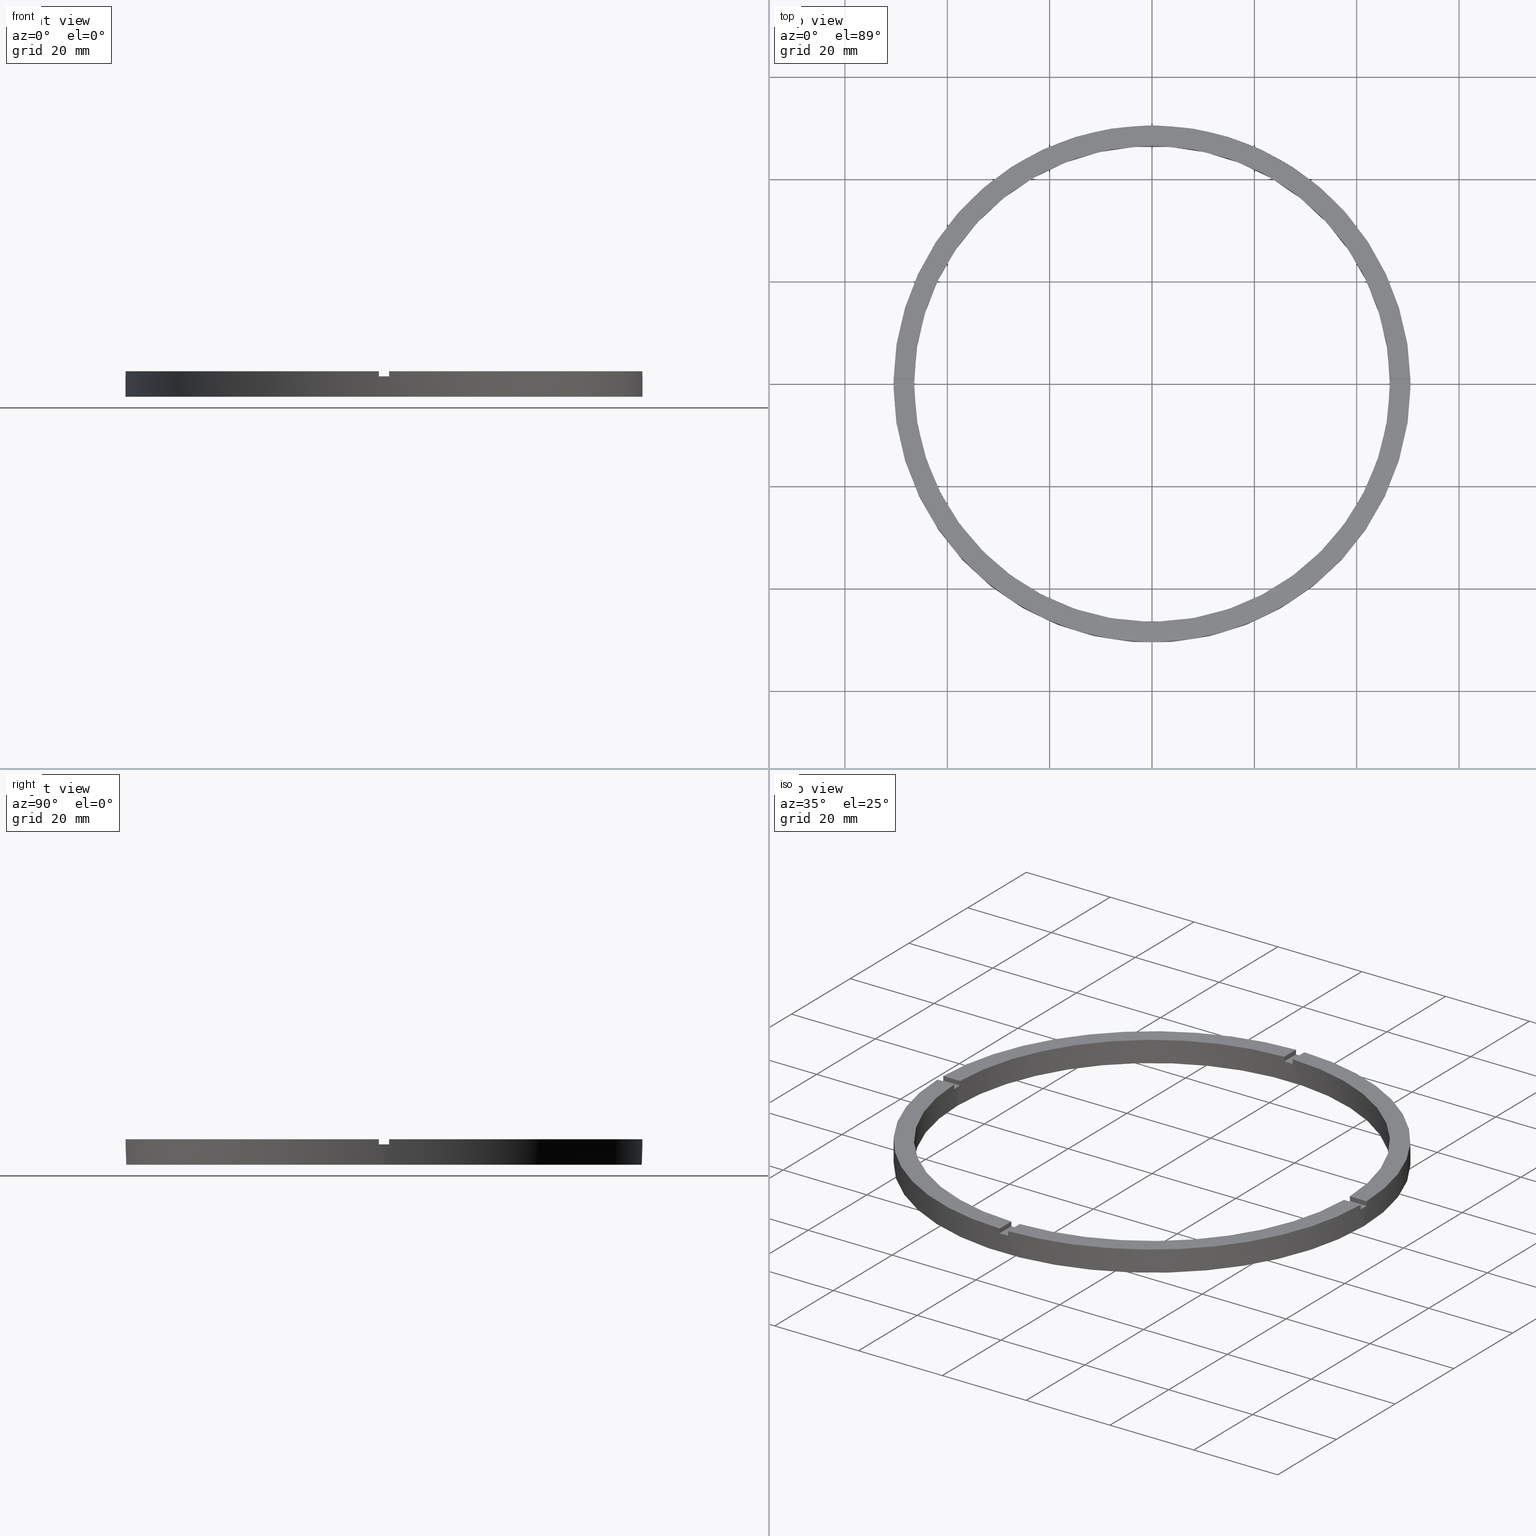
[diagram: canonical four-view strip — front | top / right | iso, engineering-drawing reading convention]
A machine part, canonical four-view strip (front | top / right | iso — engineering-drawing reading convention). The complete STEP part file that produces these views, byte-faithful:
ISO-10303-21;
HEADER;
FILE_DESCRIPTION (( 'STEP AP203' ),
    '1' );
FILE_NAME ('514207.step',
    '2024-12-26T02:48:04',
    ( 'MSI' ),
    ( '' ),
    'SwSTEP 2.0',
    'SolidWorks 2020',
    '' );
FILE_SCHEMA (( 'CONFIG_CONTROL_DESIGN' ));
ENDSEC;

DATA;
#1 = AXIS2_PLACEMENT_3D ( 'NONE', #207, #268, #42 ) ;
#2 = CARTESIAN_POINT ( 'NONE',  ( -50.50000000000000000, 0.000000000000000000, 0.000000000000000000 ) ) ;
#3 = EDGE_CURVE ( 'NONE', #343, #644, #392, .T. ) ;
#4 = DIRECTION ( 'NONE',  ( -0.000000000000000000, -0.000000000000000000, -1.000000000000000000 ) ) ;
#5 = CARTESIAN_POINT ( 'NONE',  ( -50.49009803912050387, -1.000000000000031752, 5.000000000000000000 ) ) ;
#6 = EDGE_CURVE ( 'NONE', #727, #360, #642, .T. ) ;
#7 = DIRECTION ( 'NONE',  ( 0.000000000000000000, -0.000000000000000000, 1.000000000000000000 ) ) ;
#8 = DATE_TIME_ROLE ( 'creation_date' ) ;
#9 = AXIS2_PLACEMENT_3D ( 'NONE', #67, #606, #676 ) ;
#10 = DIRECTION ( 'NONE',  ( 0.000000000000000000, 0.000000000000000000, 1.000000000000000000 ) ) ;
#11 = PERSON_AND_ORGANIZATION_ROLE ( 'classification_officer' ) ;
#12 = DIRECTION ( 'NONE',  ( -1.000000000000000000, 0.000000000000000000, 0.000000000000000000 ) ) ;
#13 = CARTESIAN_POINT ( 'NONE',  ( 0.9999999999998434586, -50.49009803912051098, 5.000000000000000000 ) ) ;
#14 = DIRECTION ( 'NONE',  ( 1.000000000000000000, 0.000000000000000000, 0.000000000000000000 ) ) ;
#15 = CC_DESIGN_DATE_AND_TIME_ASSIGNMENT ( #189, #8, ( #566 ) ) ;
#16 = CARTESIAN_POINT ( 'NONE',  ( 40.49999999999999289, -1.000000000000155653, 5.000000000000000000 ) ) ;
#17 = AXIS2_PLACEMENT_3D ( 'NONE', #48, #778, #530 ) ;
#18 = CARTESIAN_POINT ( 'NONE',  ( 40.49999999999999289, 0.9999999999998443467, 4.000000000000000000 ) ) ;
#19 = DATE_TIME_ROLE ( 'classification_date' ) ;
#20 = CARTESIAN_POINT ( 'NONE',  ( 0.9999999999999731326, 40.50000000000000000, 4.000000000000000000 ) ) ;
#21 = DIRECTION ( 'NONE',  ( 1.000000000000000000, 0.000000000000000000, 0.000000000000000000 ) ) ;
#22 = ORIENTED_EDGE ( 'NONE', *, *, #31, .T. ) ;
#23 = DIRECTION ( 'NONE',  ( 1.000000000000000000, 1.951563910473907735E-16, -0.000000000000000000 ) ) ;
#24 = ORIENTED_EDGE ( 'NONE', *, *, #151, .T. ) ;
#25 = EDGE_CURVE ( 'NONE', #592, #708, #354, .T. ) ;
#26 = ORIENTED_EDGE ( 'NONE', *, *, #372, .F. ) ;
#27 = DIRECTION ( 'NONE',  ( 1.000000000000000000, 0.000000000000000000, -0.000000000000000000 ) ) ;
#28 = ADVANCED_FACE ( 'NONE', ( #648 ), #498, .T. ) ;
#29 = AXIS2_PLACEMENT_3D ( 'NONE', #593, #670, #754 ) ;
#30 = CARTESIAN_POINT ( 'NONE',  ( 0.9999999999998430145, -46.48924606831132422, 5.000000000000000000 ) ) ;
#31 = EDGE_CURVE ( 'NONE', #336, #454, #404, .T. ) ;
#32 = ORIENTED_EDGE ( 'NONE', *, *, #307, .T. ) ;
#33 = ORIENTED_EDGE ( 'NONE', *, *, #669, .F. ) ;
#34 = CARTESIAN_POINT ( 'NONE',  ( -40.50000000000019185, -1.000000000000029754, 5.000000000000000000 ) ) ;
#35 = CC_DESIGN_APPROVAL ( #257, ( #566 ) ) ;
#36 = AXIS2_PLACEMENT_3D ( 'NONE', #514, #209, #150 ) ;
#37 = DIRECTION ( 'NONE',  ( 1.000000000000000000, 0.000000000000000000, 0.000000000000000000 ) ) ;
#38 = ORIENTED_EDGE ( 'NONE', *, *, #522, .F. ) ;
#39 = CARTESIAN_POINT ( 'NONE',  ( 46.50000000000000000, 5.694607616035192278E-15, 5.000000000000000000 ) ) ;
#40 = CARTESIAN_POINT ( 'NONE',  ( 0.000000000000000000, 0.000000000000000000, 5.000000000000000000 ) ) ;
#41 = CARTESIAN_POINT ( 'NONE',  ( 0.000000000000000000, 0.000000000000000000, 5.000000000000000000 ) ) ;
#42 = DIRECTION ( 'NONE',  ( 1.000000000000000000, 0.000000000000000000, -0.000000000000000000 ) ) ;
#43 = EDGE_CURVE ( 'NONE', #120, #441, #402, .T. ) ;
#44 = DIRECTION ( 'NONE',  ( 1.000000000000000000, 0.000000000000000000, -0.000000000000000000 ) ) ;
#45 = EDGE_CURVE ( 'NONE', #601, #705, #139, .T. ) ;
#46 = AXIS2_PLACEMENT_3D ( 'NONE', #50, #595, #64 ) ;
#47 = ORIENTED_EDGE ( 'NONE', *, *, #619, .F. ) ;
#48 = CARTESIAN_POINT ( 'NONE',  ( 0.000000000000000000, 0.000000000000000000, 4.000000000000000000 ) ) ;
#49 = CARTESIAN_POINT ( 'NONE',  ( 46.48924606831132422, 0.9999999999998447908, 4.000000000000000000 ) ) ;
#50 = CARTESIAN_POINT ( 'NONE',  ( 0.000000000000000000, 0.000000000000000000, 5.000000000000000000 ) ) ;
#51 = EDGE_CURVE ( 'NONE', #452, #644, #143, .T. ) ;
#52 = EDGE_CURVE ( 'NONE', #100, #346, #403, .T. ) ;
#53 = DIRECTION ( 'NONE',  ( -1.000000000000000000, 0.000000000000000000, 0.000000000000000000 ) ) ;
#54 = EDGE_CURVE ( 'NONE', #591, #708, #646, .T. ) ;
#55 = ORIENTED_EDGE ( 'NONE', *, *, #51, .F. ) ;
#56 = ORIENTED_EDGE ( 'NONE', *, *, #780, .T. ) ;
#57 = DIRECTION ( 'NONE',  ( -0.000000000000000000, 0.000000000000000000, 1.000000000000000000 ) ) ;
#58 = APPLICATION_PROTOCOL_DEFINITION ( 'international standard', 'config_control_design', 1994, #501 ) ;
#59 = DIRECTION ( 'NONE',  ( 1.000000000000000000, 0.000000000000000000, 0.000000000000000000 ) ) ;
#60 = AXIS2_PLACEMENT_3D ( 'NONE', #594, #671, #755 ) ;
#61 = DIRECTION ( 'NONE',  ( 0.000000000000000000, 0.000000000000000000, 1.000000000000000000 ) ) ;
#62 = DIRECTION ( 'NONE',  ( -0.000000000000000000, -0.000000000000000000, -1.000000000000000000 ) ) ;
#63 = PLANE ( 'NONE',  #182 ) ;
#64 = DIRECTION ( 'NONE',  ( 1.000000000000000000, 0.000000000000000000, 0.000000000000000000 ) ) ;
#65 = CC_DESIGN_APPROVAL ( #743, ( #730 ) ) ;
#66 = PLANE ( 'NONE',  #36 ) ;
#67 = CARTESIAN_POINT ( 'NONE',  ( 0.000000000000000000, 0.000000000000000000, 5.000000000000000000 ) ) ;
#68 = DIRECTION ( 'NONE',  ( 0.000000000000000000, 0.000000000000000000, 1.000000000000000000 ) ) ;
#69 = DESIGN_CONTEXT ( 'detailed design', #275, 'design' ) ;
#70 = EDGE_CURVE ( 'NONE', #346, #441, #405, .T. ) ;
#71 = AXIS2_PLACEMENT_3D ( 'NONE', #338, #578, #264 ) ;
#72 = ORIENTED_EDGE ( 'NONE', *, *, #321, .T. ) ;
#73 = CARTESIAN_POINT ( 'NONE',  ( 40.49999999999999289, -1.000000000000155653, 4.000000000000000000 ) ) ;
#74 = EDGE_LOOP ( 'NONE', ( #111, #640, #103, #133 ) ) ;
#75 = AXIS2_PLACEMENT_3D ( 'NONE', #73, #406, #240 ) ;
#76 = ORIENTED_EDGE ( 'NONE', *, *, #565, .F. ) ;
#77 = VERTEX_POINT ( 'NONE', #739 ) ;
#78 = ADVANCED_FACE ( 'NONE', ( #136, #400 ), #145, .F. ) ;
#79 = ORIENTED_EDGE ( 'NONE', *, *, #168, .T. ) ;
#80 = CARTESIAN_POINT ( 'NONE',  ( 50.50000000000000000, 6.184466335694133659E-15, 0.000000000000000000 ) ) ;
#81 = EDGE_LOOP ( 'NONE', ( #374, #129 ) ) ;
#82 = EDGE_LOOP ( 'NONE', ( #399, #339, #89, #643 ) ) ;
#83 = ORIENTED_EDGE ( 'NONE', *, *, #372, .T. ) ;
#84 = EDGE_CURVE ( 'NONE', #336, #604, #141, .T. ) ;
#85 = ORIENTED_EDGE ( 'NONE', *, *, #160, .F. ) ;
#86 = EDGE_LOOP ( 'NONE', ( #300, #635, #83, #93, #377, #359 ) ) ;
#87 = ORIENTED_EDGE ( 'NONE', *, *, #45, .T. ) ;
#88 = VERTEX_POINT ( 'NONE', #529 ) ;
#89 = ORIENTED_EDGE ( 'NONE', *, *, #366, .T. ) ;
#90 = ADVANCED_FACE ( 'NONE', ( #190 ), #710, .T. ) ;
#91 = ORIENTED_EDGE ( 'NONE', *, *, #6, .T. ) ;
#92 = VERTEX_POINT ( 'NONE', #532 ) ;
#93 = ORIENTED_EDGE ( 'NONE', *, *, #573, .F. ) ;
#94 = ORIENTED_EDGE ( 'NONE', *, *, #696, .F. ) ;
#95 = CARTESIAN_POINT ( 'NONE',  ( -50.49009803912050387, -1.000000000000031752, 5.000000000000000000 ) ) ;
#96 = EDGE_CURVE ( 'NONE', #708, #591, #204, .T. ) ;
#97 = ORIENTED_EDGE ( 'NONE', *, *, #45, .F. ) ;
#98 = ORIENTED_EDGE ( 'NONE', *, *, #84, .F. ) ;
#99 = ORIENTED_EDGE ( 'NONE', *, *, #263, .T. ) ;
#100 = VERTEX_POINT ( 'NONE', #326 ) ;
#101 = DIRECTION ( 'NONE',  ( -0.000000000000000000, -1.000000000000000000, -0.000000000000000000 ) ) ;
#102 = ORIENTED_EDGE ( 'NONE', *, *, #661, .F. ) ;
#103 = ORIENTED_EDGE ( 'NONE', *, *, #531, .T. ) ;
#104 = ORIENTED_EDGE ( 'NONE', *, *, #285, .F. ) ;
#105 = VERTEX_POINT ( 'NONE', #408 ) ;
#106 = DIRECTION ( 'NONE',  ( 1.000000000000000000, 0.000000000000000000, 0.000000000000000000 ) ) ;
#107 = CARTESIAN_POINT ( 'NONE',  ( 0.000000000000000000, 0.000000000000000000, 4.000000000000000000 ) ) ;
#108 = ORIENTED_EDGE ( 'NONE', *, *, #148, .F. ) ;
#109 = ORIENTED_EDGE ( 'NONE', *, *, #165, .F. ) ;
#110 = ORIENTED_EDGE ( 'NONE', *, *, #140, .F. ) ;
#111 = ORIENTED_EDGE ( 'NONE', *, *, #211, .F. ) ;
#112 = CARTESIAN_POINT ( 'NONE',  ( 0.000000000000000000, 0.000000000000000000, 5.000000000000000000 ) ) ;
#113 = ORIENTED_EDGE ( 'NONE', *, *, #508, .F. ) ;
#114 = ORIENTED_EDGE ( 'NONE', *, *, #328, .F. ) ;
#115 = VERTEX_POINT ( 'NONE', #472 ) ;
#116 = ORIENTED_EDGE ( 'NONE', *, *, #423, .T. ) ;
#117 = DIRECTION ( 'NONE',  ( 1.000000000000000000, 0.000000000000000000, 0.000000000000000000 ) ) ;
#118 = ORIENTED_EDGE ( 'NONE', *, *, #453, .F. ) ;
#119 = ORIENTED_EDGE ( 'NONE', *, *, #96, .T. ) ;
#120 = VERTEX_POINT ( 'NONE', #447 ) ;
#121 = EDGE_LOOP ( 'NONE', ( #306, #614, #375, #600, #109, #568 ) ) ;
#122 = CARTESIAN_POINT ( 'NONE',  ( 0.9999999999999731326, 40.50000000000000000, 5.000000000000000000 ) ) ;
#123 = ORIENTED_EDGE ( 'NONE', *, *, #31, .F. ) ;
#124 = VERTEX_POINT ( 'NONE', #664 ) ;
#125 = CC_DESIGN_PERSON_AND_ORGANIZATION_ASSIGNMENT ( #424, #548, ( #197 ) ) ;
#126 = ORIENTED_EDGE ( 'NONE', *, *, #43, .F. ) ;
#127 = ORIENTED_EDGE ( 'NONE', *, *, #263, .F. ) ;
#128 = DIRECTION ( 'NONE',  ( 1.000000000000000000, 0.000000000000000000, 0.000000000000000000 ) ) ;
#129 = ORIENTED_EDGE ( 'NONE', *, *, #43, .T. ) ;
#130 = EDGE_LOOP ( 'NONE', ( #550, #365, #26, #539 ) ) ;
#131 = ORIENTED_EDGE ( 'NONE', *, *, #531, .F. ) ;
#132 = EDGE_LOOP ( 'NONE', ( #383, #72, #288, #369 ) ) ;
#133 = ORIENTED_EDGE ( 'NONE', *, *, #278, .F. ) ;
#134 = ORIENTED_EDGE ( 'NONE', *, *, #168, .F. ) ;
#135 = DIRECTION ( 'NONE',  ( 1.000000000000000000, 0.000000000000000000, 0.000000000000000000 ) ) ;
#136 = FACE_OUTER_BOUND ( 'NONE', #553, .T. ) ;
#137 = VECTOR ( 'NONE', #513, 1000.000000000000000 ) ;
#138 = EDGE_CURVE ( 'NONE', #615, #180, #439, .T. ) ;
#139 = CIRCLE ( 'NONE', #60, 50.50000000000000000 ) ;
#140 = EDGE_CURVE ( 'NONE', #599, #581, #745, .T. ) ;
#141 = CIRCLE ( 'NONE', #665, 50.50000000000000000 ) ;
#142 = AXIS2_PLACEMENT_3D ( 'NONE', #246, #287, #410 ) ;
#143 = LINE ( 'NONE', #18, #137 ) ;
#144 = DIRECTION ( 'NONE',  ( 1.000000000000000000, 0.000000000000000000, 0.000000000000000000 ) ) ;
#145 = PLANE ( 'NONE',  #1 ) ;
#146 = DIRECTION ( 'NONE',  ( 0.000000000000000000, 0.000000000000000000, 1.000000000000000000 ) ) ;
#147 = DIRECTION ( 'NONE',  ( 0.000000000000000000, 0.000000000000000000, 1.000000000000000000 ) ) ;
#148 = EDGE_CURVE ( 'NONE', #727, #345, #734, .T. ) ;
#149 = DIRECTION ( 'NONE',  ( -1.000000000000000000, 0.000000000000000000, 0.000000000000000000 ) ) ;
#150 = DIRECTION ( 'NONE',  ( 1.000000000000000000, 0.000000000000000000, -0.000000000000000000 ) ) ;
#151 = EDGE_CURVE ( 'NONE', #180, #625, #470, .T. ) ;
#152 = CARTESIAN_POINT ( 'NONE',  ( -50.49009803912050387, 0.9999999999999683586, 5.000000000000000000 ) ) ;
#153 = DIRECTION ( 'NONE',  ( -0.000000000000000000, -0.000000000000000000, -1.000000000000000000 ) ) ;
#154 = CARTESIAN_POINT ( 'NONE',  ( 40.49999999999999289, 0.9999999999998443467, 5.000000000000000000 ) ) ;
#155 = EDGE_CURVE ( 'NONE', #88, #124, #737, .T. ) ;
#156 = AXIS2_PLACEMENT_3D ( 'NONE', #484, #311, #379 ) ;
#157 = CARTESIAN_POINT ( 'NONE',  ( 50.49009803912050387, -1.000000000000154987, 5.000000000000000000 ) ) ;
#158 = ADVANCED_FACE ( 'NONE', ( #726 ), #66, .T. ) ;
#159 = DIRECTION ( 'NONE',  ( 0.000000000000000000, 0.000000000000000000, 1.000000000000000000 ) ) ;
#160 = EDGE_CURVE ( 'NONE', #105, #431, #460, .T. ) ;
#161 = CARTESIAN_POINT ( 'NONE',  ( -50.50000000000000000, 0.000000000000000000, 4.000000000000000000 ) ) ;
#162 = ADVANCED_FACE ( 'NONE', ( #741 ), #473, .F. ) ;
#163 = AXIS2_PLACEMENT_3D ( 'NONE', #704, #774, #37 ) ;
#164 = PLANE ( 'NONE',  #142 ) ;
#165 = EDGE_CURVE ( 'NONE', #465, #343, #481, .T. ) ;
#166 = DIRECTION ( 'NONE',  ( -0.000000000000000000, -0.000000000000000000, -1.000000000000000000 ) ) ;
#167 = PRODUCT_DEFINITION_SHAPE ( 'NONE', 'NONE',  #566 ) ;
#168 = EDGE_CURVE ( 'NONE', #77, #454, #752, .T. ) ;
#169 = LOCAL_TIME ( 10, 48, 4.000000000000000000, #713 ) ;
#170 = CIRCLE ( 'NONE', #46, 50.50000000000000000 ) ;
#171 = DIRECTION ( 'NONE',  ( 0.000000000000000000, 0.000000000000000000, 1.000000000000000000 ) ) ;
#172 = LINE ( 'NONE', #536, #701 ) ;
#173 = DIRECTION ( 'NONE',  ( 0.000000000000000000, 0.000000000000000000, 1.000000000000000000 ) ) ;
#174 = DIRECTION ( 'NONE',  ( 1.000000000000000000, 0.000000000000000000, 0.000000000000000000 ) ) ;
#175 = EDGE_CURVE ( 'NONE', #371, #637, #485, .T. ) ;
#176 = ORGANIZATION ( 'δָ��', 'δָ��', '' ) ;
#177 = DIRECTION ( 'NONE',  ( 0.000000000000000000, 0.000000000000000000, 1.000000000000000000 ) ) ;
#178 = VECTOR ( 'NONE', #656, 1000.000000000000000 ) ;
#179 = PERSON_AND_ORGANIZATION ( #547, #176 ) ;
#180 = VERTEX_POINT ( 'NONE', #579 ) ;
#181 = CARTESIAN_POINT ( 'NONE',  ( 0.9999999999999731326, 46.48924606831132422, 5.000000000000000000 ) ) ;
#182 = AXIS2_PLACEMENT_3D ( 'NONE', #551, #394, #518 ) ;
#183 = CARTESIAN_POINT ( 'NONE',  ( 0.9999999999999731326, 50.49009803912050387, 4.000000000000000000 ) ) ;
#184 = PERSON_AND_ORGANIZATION ( #547, #176 ) ;
#185 = DIRECTION ( 'NONE',  ( 0.000000000000000000, 0.000000000000000000, 1.000000000000000000 ) ) ;
#186 = ORIENTED_EDGE ( 'NONE', *, *, #70, .F. ) ;
#187 = APPROVAL_PERSON_ORGANIZATION ( #179, #257, #672 ) ;
#188 = ORIENTED_EDGE ( 'NONE', *, *, #508, .T. ) ;
#189 = DATE_AND_TIME ( #432, #681 ) ;
#190 = FACE_OUTER_BOUND ( 'NONE', #607, .T. ) ;
#191 = CARTESIAN_POINT ( 'NONE',  ( -46.48924606831132422, 0.9999999999999690248, 5.000000000000000000 ) ) ;
#192 = CALENDAR_DATE ( 2024, 26, 12 ) ;
#193 = APPROVAL_DATE_TIME ( #700, #213 ) ;
#194 = APPROVAL_PERSON_ORGANIZATION ( #695, #213, #667 ) ;
#195 = DIRECTION ( 'NONE',  ( 0.000000000000000000, 0.000000000000000000, 1.000000000000000000 ) ) ;
#196 = PERSON_AND_ORGANIZATION ( #547, #176 ) ;
#197 = PRODUCT ( '514207', '514207', '', ( #435 ) ) ;
#198 = CALENDAR_DATE ( 2024, 26, 12 ) ;
#199 = AXIS2_PLACEMENT_3D ( 'NONE', #668, #549, #585 ) ;
#200 = CARTESIAN_POINT ( 'NONE',  ( -46.50000000000000000, 0.000000000000000000, 5.000000000000000000 ) ) ;
#201 = APPROVAL_STATUS ( 'not_yet_approved' ) ;
#202 = LINE ( 'NONE', #722, #685 ) ;
#203 = APPROVAL_DATE_TIME ( #699, #257 ) ;
#204 = CIRCLE ( 'NONE', #352, 50.50000000000000000 ) ;
#205 = APPROVAL_PERSON_ORGANIZATION ( #196, #743, #266 ) ;
#206 = DIRECTION ( 'NONE',  ( 1.000000000000000000, 1.301042606982605074E-16, 0.000000000000000000 ) ) ;
#207 = CARTESIAN_POINT ( 'NONE',  ( 0.000000000000000000, 0.000000000000000000, 0.000000000000000000 ) ) ;
#208 = APPROVAL_STATUS ( 'not_yet_approved' ) ;
#209 = DIRECTION ( 'NONE',  ( 0.000000000000000000, -0.000000000000000000, 1.000000000000000000 ) ) ;
#210 = FACE_OUTER_BOUND ( 'NONE', #355, .T. ) ;
#211 = EDGE_CURVE ( 'NONE', #100, #398, #720, .T. ) ;
#212 = VECTOR ( 'NONE', #61, 1000.000000000000000 ) ;
#213 = APPROVAL ( #208, 'δָ��' ) ;
#214 = CIRCLE ( 'NONE', #17, 50.50000000000000000 ) ;
#215 = CIRCLE ( 'NONE', #545, 50.50000000000000000 ) ;
#216 = CARTESIAN_POINT ( 'NONE',  ( 50.49009803912050387, -1.000000000000154987, 4.000000000000000000 ) ) ;
#217 = AXIS2_PLACEMENT_3D ( 'NONE', #255, #492, #570 ) ;
#218 = DIRECTION ( 'NONE',  ( -0.000000000000000000, -0.000000000000000000, -1.000000000000000000 ) ) ;
#219 = LINE ( 'NONE', #95, #222 ) ;
#220 = FACE_OUTER_BOUND ( 'NONE', #356, .T. ) ;
#221 = LOCAL_TIME ( 10, 48, 4.000000000000000000, #442 ) ;
#222 = VECTOR ( 'NONE', #166, 1000.000000000000000 ) ;
#223 = DIRECTION ( 'NONE',  ( 1.000000000000000000, 0.000000000000000000, -0.000000000000000000 ) ) ;
#224 = DIRECTION ( 'NONE',  ( -1.000000000000000000, -6.505213034913025371E-17, -0.000000000000000000 ) ) ;
#225 = FACE_OUTER_BOUND ( 'NONE', #381, .T. ) ;
#226 = VECTOR ( 'NONE', #272, 1000.000000000000000 ) ;
#227 = FACE_OUTER_BOUND ( 'NONE', #74, .T. ) ;
#228 = LINE ( 'NONE', #154, #746 ) ;
#229 = CARTESIAN_POINT ( 'NONE',  ( 46.48924606831132422, -1.000000000000155209, 4.000000000000000000 ) ) ;
#230 = CIRCLE ( 'NONE', #657, 50.50000000000000000 ) ;
#231 = FACE_OUTER_BOUND ( 'NONE', #395, .T. ) ;
#232 = LINE ( 'NONE', #267, #487 ) ;
#233 = FACE_OUTER_BOUND ( 'NONE', #82, .T. ) ;
#234 = DIRECTION ( 'NONE',  ( -0.000000000000000000, -0.000000000000000000, -1.000000000000000000 ) ) ;
#235 = LINE ( 'NONE', #577, #751 ) ;
#236 = CIRCLE ( 'NONE', #163, 46.50000000000000000 ) ;
#237 = LINE ( 'NONE', #702, #493 ) ;
#238 = EDGE_CURVE ( 'NONE', #105, #376, #228, .T. ) ;
#239 = VECTOR ( 'NONE', #546, 1000.000000000000000 ) ;
#240 = DIRECTION ( 'NONE',  ( 1.000000000000000000, 6.505213034913025371E-17, 0.000000000000000000 ) ) ;
#241 = CYLINDRICAL_SURFACE ( 'NONE', #515, 50.50000000000000000 ) ;
#242 = DIRECTION ( 'NONE',  ( 0.000000000000000000, 0.000000000000000000, 1.000000000000000000 ) ) ;
#243 = FACE_OUTER_BOUND ( 'NONE', #350, .T. ) ;
#244 = AXIS2_PLACEMENT_3D ( 'NONE', #112, #258, #714 ) ;
#245 = FACE_OUTER_BOUND ( 'NONE', #121, .T. ) ;
#246 = CARTESIAN_POINT ( 'NONE',  ( -40.50000000000019185, -1.000000000000029754, 4.000000000000000000 ) ) ;
#247 = LINE ( 'NONE', #652, #510 ) ;
#248 = DIRECTION ( 'NONE',  ( 1.000000000000000000, 0.000000000000000000, 0.000000000000000000 ) ) ;
#249 = DIRECTION ( 'NONE',  ( -0.000000000000000000, -0.000000000000000000, -1.000000000000000000 ) ) ;
#250 = VECTOR ( 'NONE', #528, 1000.000000000000000 ) ;
#251 = LINE ( 'NONE', #34, #766 ) ;
#252 = ADVANCED_FACE ( 'NONE', ( #231 ), #552, .T. ) ;
#253 = VECTOR ( 'NONE', #319, 1000.000000000000000 ) ;
#254 = LINE ( 'NONE', #327, #253 ) ;
#255 = CARTESIAN_POINT ( 'NONE',  ( 0.000000000000000000, 0.000000000000000000, 5.000000000000000000 ) ) ;
#256 = LINE ( 'NONE', #39, #763 ) ;
#257 = APPROVAL ( #658, 'δָ��' ) ;
#258 = DIRECTION ( 'NONE',  ( 0.000000000000000000, 0.000000000000000000, 1.000000000000000000 ) ) ;
#259 = ADVANCED_FACE ( 'NONE', ( #227 ), #63, .F. ) ;
#260 = AXIS2_PLACEMENT_3D ( 'NONE', #567, #629, #412 ) ;
#261 = CARTESIAN_POINT ( 'NONE',  ( -1.000000000000026867, 46.48924606831132422, 5.000000000000000000 ) ) ;
#262 = DIRECTION ( 'NONE',  ( 0.000000000000000000, 0.000000000000000000, 1.000000000000000000 ) ) ;
#263 = EDGE_CURVE ( 'NONE', #581, #77, #721, .T. ) ;
#264 = DIRECTION ( 'NONE',  ( -1.000000000000000000, -6.505213034913025371E-17, 0.000000000000000000 ) ) ;
#265 = EDGE_CURVE ( 'NONE', #376, #115, #756, .T. ) ;
#266 = APPROVAL_ROLE ( '' ) ;
#267 = CARTESIAN_POINT ( 'NONE',  ( 0.9999999999998430145, -46.48924606831132422, 5.000000000000000000 ) ) ;
#268 = DIRECTION ( 'NONE',  ( 0.000000000000000000, 0.000000000000000000, 1.000000000000000000 ) ) ;
#269 = DIRECTION ( 'NONE',  ( 0.000000000000000000, 0.000000000000000000, 1.000000000000000000 ) ) ;
#270 = ADVANCED_BREP_SHAPE_REPRESENTATION ( '514207', ( #276, #589 ), #542 ) ;
#271 = CARTESIAN_POINT ( 'NONE',  ( -50.49009803912050387, 0.9999999999999683586, 4.000000000000000000 ) ) ;
#272 = DIRECTION ( 'NONE',  ( 0.000000000000000000, 0.000000000000000000, 1.000000000000000000 ) ) ;
#273 = AXIS2_PLACEMENT_3D ( 'NONE', #781, #335, #44 ) ;
#274 = PLANE ( 'NONE',  #29 ) ;
#275 = APPLICATION_CONTEXT ( 'configuration controlled 3d designs of mechanical parts and assemblies' ) ;
#276 = MANIFOLD_SOLID_BREP ( '�г�-����1', #605 ) ;
#277 = ADVANCED_FACE ( 'NONE', ( #233 ), #274, .F. ) ;
#278 = EDGE_CURVE ( 'NONE', #398, #705, #731, .T. ) ;
#279 = CC_DESIGN_PERSON_AND_ORGANIZATION_ASSIGNMENT ( #429, #733, ( #566 ) ) ;
#280 = ADVANCED_FACE ( 'NONE', ( #225 ), #241, .T. ) ;
#281 = UNCERTAINTY_MEASURE_WITH_UNIT (LENGTH_MEASURE( 1.000000000000000082E-05 ), #544, 'distance_accuracy_value', 'NONE');
#282 = CARTESIAN_POINT ( 'NONE',  ( -40.50000000000019185, 0.9999999999999703570, 5.000000000000000000 ) ) ;
#283 = ADVANCED_FACE ( 'NONE', ( #475 ), #738, .F. ) ;
#284 = CARTESIAN_POINT ( 'NONE',  ( 0.9999999999998434586, -50.49009803912051098, 5.000000000000000000 ) ) ;
#285 = EDGE_CURVE ( 'NONE', #180, #388, #214, .T. ) ;
#286 = DIRECTION ( 'NONE',  ( 1.000000000000000000, 0.000000000000000000, 0.000000000000000000 ) ) ;
#287 = DIRECTION ( 'NONE',  ( 1.951563910473907735E-16, -1.000000000000000000, 0.000000000000000000 ) ) ;
#288 = ORIENTED_EDGE ( 'NONE', *, *, #6, .F. ) ;
#289 = CARTESIAN_POINT ( 'NONE',  ( -46.50000000000000000, 0.000000000000000000, 0.000000000000000000 ) ) ;
#290 = AXIS2_PLACEMENT_3D ( 'NONE', #315, #218, #12 ) ;
#291 = PLANE ( 'NONE',  #443 ) ;
#292 = CARTESIAN_POINT ( 'NONE',  ( 50.49009803912051098, 0.9999999999998450129, 4.000000000000000000 ) ) ;
#293 = DIRECTION ( 'NONE',  ( 0.000000000000000000, 0.000000000000000000, 1.000000000000000000 ) ) ;
#294 = DIRECTION ( 'NONE',  ( 0.000000000000000000, 0.000000000000000000, 1.000000000000000000 ) ) ;
#295 = CARTESIAN_POINT ( 'NONE',  ( 0.000000000000000000, 0.000000000000000000, 4.000000000000000000 ) ) ;
#296 = CC_DESIGN_SECURITY_CLASSIFICATION ( #351, ( #730 ) ) ;
#297 = PLANE ( 'NONE',  #273 ) ;
#298 = AXIS2_PLACEMENT_3D ( 'NONE', #417, #57, #414 ) ;
#299 =( NAMED_UNIT ( * ) PLANE_ANGLE_UNIT ( ) SI_UNIT ( $, .RADIAN. ) );
#300 = ORIENTED_EDGE ( 'NONE', *, *, #305, .T. ) ;
#301 = EDGE_CURVE ( 'NONE', #592, #616, #729, .T. ) ;
#302 = ORIENTED_EDGE ( 'NONE', *, *, #52, .T. ) ;
#303 = DIRECTION ( 'NONE',  ( 0.000000000000000000, 0.000000000000000000, 1.000000000000000000 ) ) ;
#304 = ORIENTED_EDGE ( 'NONE', *, *, #742, .F. ) ;
#305 = EDGE_CURVE ( 'NONE', #398, #592, #230, .T. ) ;
#306 = ORIENTED_EDGE ( 'NONE', *, *, #84, .T. ) ;
#307 = EDGE_CURVE ( 'NONE', #581, #634, #232, .T. ) ;
#308 = CARTESIAN_POINT ( 'NONE',  ( 0.000000000000000000, 0.000000000000000000, 4.000000000000000000 ) ) ;
#309 = CARTESIAN_POINT ( 'NONE',  ( 0.000000000000000000, 0.000000000000000000, 4.000000000000000000 ) ) ;
#310 = DIRECTION ( 'NONE',  ( 0.000000000000000000, 0.000000000000000000, 1.000000000000000000 ) ) ;
#311 = DIRECTION ( 'NONE',  ( 0.000000000000000000, 0.000000000000000000, 1.000000000000000000 ) ) ;
#312 = AXIS2_PLACEMENT_3D ( 'NONE', #535, #185, #574 ) ;
#313 = DIRECTION ( 'NONE',  ( -0.000000000000000000, -0.000000000000000000, -1.000000000000000000 ) ) ;
#314 = CARTESIAN_POINT ( 'NONE',  ( -1.000000000000156986, -46.48924606831132422, 5.000000000000000000 ) ) ;
#315 = CARTESIAN_POINT ( 'NONE',  ( 0.000000000000000000, 0.000000000000000000, 5.000000000000000000 ) ) ;
#316 = DIRECTION ( 'NONE',  ( 1.301042606982605074E-16, -1.000000000000000000, 0.000000000000000000 ) ) ;
#317 = AXIS2_PLACEMENT_3D ( 'NONE', #608, #147, #223 ) ;
#318 = ORIENTED_EDGE ( 'NONE', *, *, #760, .F. ) ;
#319 = DIRECTION ( 'NONE',  ( -0.000000000000000000, -0.000000000000000000, -1.000000000000000000 ) ) ;
#320 = ORIENTED_EDGE ( 'NONE', *, *, #413, .F. ) ;
#321 = EDGE_CURVE ( 'NONE', #363, #360, #477, .T. ) ;
#322 = PLANE ( 'NONE',  #75 ) ;
#323 = ADVANCED_FACE ( 'NONE', ( #220 ), #368, .T. ) ;
#324 = PRODUCT_RELATED_PRODUCT_CATEGORY ( 'detail', '', ( #197 ) ) ;
#325 = CARTESIAN_POINT ( 'NONE',  ( 0.000000000000000000, 0.000000000000000000, 5.000000000000000000 ) ) ;
#326 = CARTESIAN_POINT ( 'NONE',  ( -46.48924606831132422, 0.9999999999999690248, 4.000000000000000000 ) ) ;
#327 = CARTESIAN_POINT ( 'NONE',  ( 50.50000000000000000, 6.184466335694133659E-15, 5.000000000000000000 ) ) ;
#328 = EDGE_CURVE ( 'NONE', #604, #452, #215, .T. ) ;
#329 = CARTESIAN_POINT ( 'NONE',  ( -1.000000000000026867, 40.50000000000000000, 4.000000000000000000 ) ) ;
#330 = ORIENTED_EDGE ( 'NONE', *, *, #413, .T. ) ;
#331 = ORIENTED_EDGE ( 'NONE', *, *, #474, .F. ) ;
#332 = AXIS2_PLACEMENT_3D ( 'NONE', #446, #762, #21 ) ;
#333 = ADVANCED_FACE ( 'NONE', ( #482 ), #488, .T. ) ;
#334 = ORIENTED_EDGE ( 'NONE', *, *, #742, .T. ) ;
#335 = DIRECTION ( 'NONE',  ( 0.000000000000000000, 0.000000000000000000, 1.000000000000000000 ) ) ;
#336 = VERTEX_POINT ( 'NONE', #216 ) ;
#337 = DIRECTION ( 'NONE',  ( 1.000000000000000000, 0.000000000000000000, 0.000000000000000000 ) ) ;
#338 = CARTESIAN_POINT ( 'NONE',  ( 40.49999999999999289, 0.9999999999998443467, 4.000000000000000000 ) ) ;
#339 = ORIENTED_EDGE ( 'NONE', *, *, #753, .T. ) ;
#340 = ORIENTED_EDGE ( 'NONE', *, *, #453, .T. ) ;
#341 = ORIENTED_EDGE ( 'NONE', *, *, #307, .F. ) ;
#342 = ORIENTED_EDGE ( 'NONE', *, *, #450, .T. ) ;
#343 = VERTEX_POINT ( 'NONE', #783 ) ;
#344 = DIRECTION ( 'NONE',  ( 0.000000000000000000, 0.000000000000000000, 1.000000000000000000 ) ) ;
#345 = VERTEX_POINT ( 'NONE', #183 ) ;
#346 = VERTEX_POINT ( 'NONE', #654 ) ;
#347 = ORIENTED_EDGE ( 'NONE', *, *, #401, .F. ) ;
#348 = DIRECTION ( 'NONE',  ( 0.000000000000000000, 0.000000000000000000, 1.000000000000000000 ) ) ;
#349 = ORIENTED_EDGE ( 'NONE', *, *, #54, .F. ) ;
#350 = EDGE_LOOP ( 'NONE', ( #47, #559, #79, #123 ) ) ;
#351 = SECURITY_CLASSIFICATION ( '', '', #506 ) ;
#352 = AXIS2_PLACEMENT_3D ( 'NONE', #632, #242, #286 ) ;
#353 = EDGE_LOOP ( 'NONE', ( #582, #102, #390, #334 ) ) ;
#354 = LINE ( 'NONE', #725, #621 ) ;
#355 = EDGE_LOOP ( 'NONE', ( #451, #342, #580, #320 ) ) ;
#356 = EDGE_LOOP ( 'NONE', ( #367, #630, #318, #609 ) ) ;
#357 = ORIENTED_EDGE ( 'NONE', *, *, #175, .T. ) ;
#358 = DIRECTION ( 'NONE',  ( -0.000000000000000000, -0.000000000000000000, -1.000000000000000000 ) ) ;
#359 = ORIENTED_EDGE ( 'NONE', *, *, #211, .T. ) ;
#360 = VERTEX_POINT ( 'NONE', #649 ) ;
#361 = ORIENTED_EDGE ( 'NONE', *, *, #278, .T. ) ;
#362 = ORIENTED_EDGE ( 'NONE', *, *, #140, .T. ) ;
#363 = VERTEX_POINT ( 'NONE', #540 ) ;
#364 = ORIENTED_EDGE ( 'NONE', *, *, #160, .T. ) ;
#365 = ORIENTED_EDGE ( 'NONE', *, *, #155, .T. ) ;
#366 = EDGE_CURVE ( 'NONE', #92, #625, #466, .T. ) ;
#367 = ORIENTED_EDGE ( 'NONE', *, *, #285, .T. ) ;
#368 = PLANE ( 'NONE',  #298 ) ;
#369 = ORIENTED_EDGE ( 'NONE', *, *, #148, .T. ) ;
#370 = CARTESIAN_POINT ( 'NONE',  ( 0.000000000000000000, 0.000000000000000000, 5.000000000000000000 ) ) ;
#371 = VERTEX_POINT ( 'NONE', #261 ) ;
#372 = EDGE_CURVE ( 'NONE', #616, #124, #235, .T. ) ;
#373 = CARTESIAN_POINT ( 'NONE',  ( 0.000000000000000000, 0.000000000000000000, 5.000000000000000000 ) ) ;
#374 = ORIENTED_EDGE ( 'NONE', *, *, #419, .T. ) ;
#375 = ORIENTED_EDGE ( 'NONE', *, *, #51, .T. ) ;
#376 = VERTEX_POINT ( 'NONE', #719 ) ;
#377 = ORIENTED_EDGE ( 'NONE', *, *, #52, .F. ) ;
#378 = AXIS2_PLACEMENT_3D ( 'NONE', #516, #206, #427 ) ;
#379 = DIRECTION ( 'NONE',  ( 1.000000000000000000, 0.000000000000000000, -0.000000000000000000 ) ) ;
#380 = ORIENTED_EDGE ( 'NONE', *, *, #753, .F. ) ;
#381 = EDGE_LOOP ( 'NONE', ( #38, #98, #22, #639, #586, #104, #24, #304, #116, #389, #596, #119 ) ) ;
#382 = CARTESIAN_POINT ( 'NONE',  ( -1.000000000000026867, 50.49009803912050387, 5.000000000000000000 ) ) ;
#383 = ORIENTED_EDGE ( 'NONE', *, *, #391, .T. ) ;
#384 = CARTESIAN_POINT ( 'NONE',  ( -1.000000000000026867, 40.50000000000000000, 4.000000000000000000 ) ) ;
#385 = ORIENTED_EDGE ( 'NONE', *, *, #54, .T. ) ;
#386 = DIRECTION ( 'NONE',  ( 1.000000000000000000, 6.505213034913025371E-17, 0.000000000000000000 ) ) ;
#387 = ORIENTED_EDGE ( 'NONE', *, *, #70, .T. ) ;
#388 = VERTEX_POINT ( 'NONE', #666 ) ;
#389 = ORIENTED_EDGE ( 'NONE', *, *, #301, .F. ) ;
#390 = ORIENTED_EDGE ( 'NONE', *, *, #571, .F. ) ;
#391 = EDGE_CURVE ( 'NONE', #345, #363, #732, .T. ) ;
#392 = CIRCLE ( 'NONE', #420, 46.50000000000000000 ) ;
#393 = ORIENTED_EDGE ( 'NONE', *, *, #96, .F. ) ;
#394 = DIRECTION ( 'NONE',  ( -1.951563910473907735E-16, 1.000000000000000000, 0.000000000000000000 ) ) ;
#395 = EDGE_LOOP ( 'NONE', ( #94, #636, #638, #364 ) ) ;
#396 = ORIENTED_EDGE ( 'NONE', *, *, #265, .T. ) ;
#397 = DIRECTION ( 'NONE',  ( -1.301042606982605074E-16, 1.000000000000000000, -0.000000000000000000 ) ) ;
#398 = VERTEX_POINT ( 'NONE', #271 ) ;
#399 = ORIENTED_EDGE ( 'NONE', *, *, #138, .F. ) ;
#400 = FACE_BOUND ( 'NONE', #81, .T. ) ;
#401 = EDGE_CURVE ( 'NONE', #599, #388, #723, .T. ) ;
#402 = CIRCLE ( 'NONE', #478, 46.50000000000000000 ) ;
#403 = CIRCLE ( 'NONE', #576, 46.50000000000000000 ) ;
#404 = LINE ( 'NONE', #717, #651 ) ;
#405 = LINE ( 'NONE', #200, #650 ) ;
#406 = DIRECTION ( 'NONE',  ( 6.505213034913025371E-17, -1.000000000000000000, 0.000000000000000000 ) ) ;
#407 = CARTESIAN_POINT ( 'NONE',  ( -1.000000000000026867, 50.49009803912050387, 5.000000000000000000 ) ) ;
#408 = CARTESIAN_POINT ( 'NONE',  ( 50.49009803912051098, 0.9999999999998450129, 5.000000000000000000 ) ) ;
#409 = AXIS2_PLACEMENT_3D ( 'NONE', #370, #303, #663 ) ;
#410 = DIRECTION ( 'NONE',  ( 1.000000000000000000, 1.951563910473907735E-16, 0.000000000000000000 ) ) ;
#411 = CARTESIAN_POINT ( 'NONE',  ( -1.000000000000026867, 46.48924606831132422, 5.000000000000000000 ) ) ;
#412 = DIRECTION ( 'NONE',  ( 0.000000000000000000, 0.000000000000000000, -1.000000000000000000 ) ) ;
#413 = EDGE_CURVE ( 'NONE', #601, #363, #748, .T. ) ;
#414 = DIRECTION ( 'NONE',  ( 1.000000000000000000, 0.000000000000000000, 0.000000000000000000 ) ) ;
#415 = CARTESIAN_POINT ( 'NONE',  ( 0.9999999999998430145, -46.48924606831132422, 4.000000000000000000 ) ) ;
#416 = CARTESIAN_POINT ( 'NONE',  ( 0.000000000000000000, 0.000000000000000000, 0.000000000000000000 ) ) ;
#417 = CARTESIAN_POINT ( 'NONE',  ( 0.000000000000000000, 0.000000000000000000, 4.000000000000000000 ) ) ;
#418 = DIRECTION ( 'NONE',  ( 0.000000000000000000, 0.000000000000000000, 1.000000000000000000 ) ) ;
#419 = EDGE_CURVE ( 'NONE', #441, #120, #236, .T. ) ;
#420 = AXIS2_PLACEMENT_3D ( 'NONE', #659, #294, #135 ) ;
#421 = DIRECTION ( 'NONE',  ( 1.000000000000000000, 0.000000000000000000, 0.000000000000000000 ) ) ;
#422 = PLANE ( 'NONE',  #771 ) ;
#423 = EDGE_CURVE ( 'NONE', #711, #616, #219, .T. ) ;
#424 = PERSON_AND_ORGANIZATION ( #547, #176 ) ;
#425 = PERSON_AND_ORGANIZATION_ROLE ( 'design_supplier' ) ;
#426 = COORDINATED_UNIVERSAL_TIME_OFFSET ( 8, 0, .AHEAD. ) ;
#427 = DIRECTION ( 'NONE',  ( -1.301042606982605074E-16, 1.000000000000000000, 0.000000000000000000 ) ) ;
#428 =( NAMED_UNIT ( * ) SI_UNIT ( $, .STERADIAN. ) SOLID_ANGLE_UNIT ( ) );
#429 = PERSON_AND_ORGANIZATION ( #547, #176 ) ;
#430 = CARTESIAN_POINT ( 'NONE',  ( -1.000000000000157874, -40.50000000000018474, 4.000000000000000000 ) ) ;
#431 = VERTEX_POINT ( 'NONE', #712 ) ;
#432 = CALENDAR_DATE ( 2024, 26, 12 ) ;
#433 = PERSON_AND_ORGANIZATION ( #547, #176 ) ;
#434 = COORDINATED_UNIVERSAL_TIME_OFFSET ( 8, 0, .AHEAD. ) ;
#435 = MECHANICAL_CONTEXT ( 'NONE', #501, 'mechanical' ) ;
#436 = LOCAL_TIME ( 10, 48, 4.000000000000000000, #445 ) ;
#437 = CC_DESIGN_PERSON_AND_ORGANIZATION_ASSIGNMENT ( #690, #11, ( #351 ) ) ;
#438 = CARTESIAN_POINT ( 'NONE',  ( -1.000000000000156541, -50.49009803912050387, 5.000000000000000000 ) ) ;
#439 = LINE ( 'NONE', #430, #718 ) ;
#440 = DATE_AND_TIME ( #192, #693 ) ;
#441 = VERTEX_POINT ( 'NONE', #289 ) ;
#442 = COORDINATED_UNIVERSAL_TIME_OFFSET ( 8, 0, .AHEAD. ) ;
#443 = AXIS2_PLACEMENT_3D ( 'NONE', #325, #776, #27 ) ;
#444 = EDGE_LOOP ( 'NONE', ( #613, #188, #703, #186, #467, #624, #633, #380, #686, #341, #99, #618 ) ) ;
#445 = COORDINATED_UNIVERSAL_TIME_OFFSET ( 8, 0, .AHEAD. ) ;
#446 = CARTESIAN_POINT ( 'NONE',  ( 0.000000000000000000, 0.000000000000000000, 5.000000000000000000 ) ) ;
#447 = CARTESIAN_POINT ( 'NONE',  ( 46.50000000000000000, 5.694607616035192278E-15, 0.000000000000000000 ) ) ;
#448 = FACE_OUTER_BOUND ( 'NONE', #590, .T. ) ;
#449 = ORIENTED_EDGE ( 'NONE', *, *, #25, .F. ) ;
#450 = EDGE_CURVE ( 'NONE', #371, #360, #491, .T. ) ;
#451 = ORIENTED_EDGE ( 'NONE', *, *, #474, .T. ) ;
#452 = VERTEX_POINT ( 'NONE', #292 ) ;
#453 = EDGE_CURVE ( 'NONE', #345, #431, #237, .T. ) ;
#454 = VERTEX_POINT ( 'NONE', #157 ) ;
#455 = DIRECTION ( 'NONE',  ( 1.000000000000000000, 0.000000000000000000, -0.000000000000000000 ) ) ;
#456 = LINE ( 'NONE', #575, #709 ) ;
#457 = DATE_AND_TIME ( #198, #436 ) ;
#458 = EDGE_CURVE ( 'NONE', #105, #452, #495, .T. ) ;
#459 = VECTOR ( 'NONE', #195, 1000.000000000000000 ) ;
#460 = CIRCLE ( 'NONE', #199, 50.50000000000000000 ) ;
#461 = DIRECTION ( 'NONE',  ( -0.000000000000000000, -0.000000000000000000, -1.000000000000000000 ) ) ;
#462 = VECTOR ( 'NONE', #641, 1000.000000000000000 ) ;
#463 = VECTOR ( 'NONE', #747, 1000.000000000000000 ) ;
#464 = AXIS2_PLACEMENT_3D ( 'NONE', #373, #517, #59 ) ;
#465 = VERTEX_POINT ( 'NONE', #229 ) ;
#466 = LINE ( 'NONE', #512, #463 ) ;
#467 = ORIENTED_EDGE ( 'NONE', *, *, #573, .T. ) ;
#468 = VECTOR ( 'NONE', #562, 1000.000000000000000 ) ;
#469 = CARTESIAN_POINT ( 'NONE',  ( -1.000000000000156986, -46.48924606831132422, 4.000000000000000000 ) ) ;
#470 = LINE ( 'NONE', #438, #226 ) ;
#471 = ADVANCED_FACE ( 'NONE', ( #765 ), #291, .T. ) ;
#472 = CARTESIAN_POINT ( 'NONE',  ( 0.9999999999999731326, 46.48924606831132422, 5.000000000000000000 ) ) ;
#473 = CYLINDRICAL_SURFACE ( 'NONE', #290, 46.50000000000000000 ) ;
#474 = EDGE_CURVE ( 'NONE', #601, #371, #759, .T. ) ;
#475 = FACE_OUTER_BOUND ( 'NONE', #588, .T. ) ;
#476 = CARTESIAN_POINT ( 'NONE',  ( 40.49999999999999289, -1.000000000000155653, 4.000000000000000000 ) ) ;
#477 = LINE ( 'NONE', #329, #462 ) ;
#478 = AXIS2_PLACEMENT_3D ( 'NONE', #416, #344, #14 ) ;
#479 = DIRECTION ( 'NONE',  ( -0.000000000000000000, -0.000000000000000000, -1.000000000000000000 ) ) ;
#480 = VECTOR ( 'NONE', #62, 1000.000000000000000 ) ;
#481 = CIRCLE ( 'NONE', #645, 46.50000000000000000 ) ;
#482 = FACE_OUTER_BOUND ( 'NONE', #612, .T. ) ;
#483 = CARTESIAN_POINT ( 'NONE',  ( 0.000000000000000000, 0.000000000000000000, 5.000000000000000000 ) ) ;
#484 = CARTESIAN_POINT ( 'NONE',  ( 0.000000000000000000, 0.000000000000000000, 4.000000000000000000 ) ) ;
#485 = CIRCLE ( 'NONE', #464, 46.50000000000000000 ) ;
#486 = DIRECTION ( 'NONE',  ( 1.000000000000000000, 0.000000000000000000, -0.000000000000000000 ) ) ;
#487 = VECTOR ( 'NONE', #479, 1000.000000000000000 ) ;
#488 = CYLINDRICAL_SURFACE ( 'NONE', #217, 50.50000000000000000 ) ;
#489 = ADVANCED_FACE ( 'NONE', ( #245 ), #524, .T. ) ;
#490 = VECTOR ( 'NONE', #313, 1000.000000000000000 ) ;
#491 = LINE ( 'NONE', #411, #750 ) ;
#492 = DIRECTION ( 'NONE',  ( -0.000000000000000000, -0.000000000000000000, -1.000000000000000000 ) ) ;
#493 = VECTOR ( 'NONE', #171, 1000.000000000000000 ) ;
#494 = PLANE ( 'NONE',  #71 ) ;
#495 = LINE ( 'NONE', #707, #769 ) ;
#496 = AXIS2_PLACEMENT_3D ( 'NONE', #583, #293, #337 ) ;
#497 = VECTOR ( 'NONE', #673, 1000.000000000000000 ) ;
#498 = PLANE ( 'NONE',  #156 ) ;
#499 = FACE_OUTER_BOUND ( 'NONE', #587, .T. ) ;
#500 = LINE ( 'NONE', #476, #250 ) ;
#501 = APPLICATION_CONTEXT ( 'configuration controlled 3d designs of mechanical parts and assemblies' ) ;
#502 = CYLINDRICAL_SURFACE ( 'NONE', #597, 46.50000000000000000 ) ;
#503 = FACE_OUTER_BOUND ( 'NONE', #130, .T. ) ;
#504 = CIRCLE ( 'NONE', #525, 46.50000000000000000 ) ;
#505 = VECTOR ( 'NONE', #620, 1000.000000000000000 ) ;
#506 = SECURITY_CLASSIFICATION_LEVEL ( 'unclassified' ) ;
#507 = CIRCLE ( 'NONE', #244, 46.50000000000000000 ) ;
#508 = EDGE_CURVE ( 'NONE', #343, #120, #256, .T. ) ;
#509 = VECTOR ( 'NONE', #262, 1000.000000000000000 ) ;
#510 = VECTOR ( 'NONE', #764, 1000.000000000000000 ) ;
#511 = LINE ( 'NONE', #282, #505 ) ;
#512 = CARTESIAN_POINT ( 'NONE',  ( -1.000000000000157874, -40.50000000000018474, 5.000000000000000000 ) ) ;
#513 = DIRECTION ( 'NONE',  ( -1.000000000000000000, -6.505213034913025371E-17, -0.000000000000000000 ) ) ;
#514 = CARTESIAN_POINT ( 'NONE',  ( 0.000000000000000000, 0.000000000000000000, 4.000000000000000000 ) ) ;
#515 = AXIS2_PLACEMENT_3D ( 'NONE', #41, #249, #149 ) ;
#516 = CARTESIAN_POINT ( 'NONE',  ( 0.9999999999998421263, -40.50000000000018474, 4.000000000000000000 ) ) ;
#517 = DIRECTION ( 'NONE',  ( 0.000000000000000000, 0.000000000000000000, 1.000000000000000000 ) ) ;
#518 = DIRECTION ( 'NONE',  ( -1.000000000000000000, -1.951563910473907735E-16, 0.000000000000000000 ) ) ;
#519 = CC_DESIGN_DATE_AND_TIME_ASSIGNMENT ( #440, #19, ( #351 ) ) ;
#520 = AXIS2_PLACEMENT_3D ( 'NONE', #653, #7, #421 ) ;
#521 = DIRECTION ( 'NONE',  ( -0.000000000000000000, -0.000000000000000000, -1.000000000000000000 ) ) ;
#522 = EDGE_CURVE ( 'NONE', #604, #591, #254, .T. ) ;
#523 = CC_DESIGN_PERSON_AND_ORGANIZATION_ASSIGNMENT ( #184, #584, ( #730 ) ) ;
#524 = PLANE ( 'NONE',  #688 ) ;
#525 = AXIS2_PLACEMENT_3D ( 'NONE', #770, #68, #689 ) ;
#526 = ADVANCED_FACE ( 'NONE', ( #499 ), #502, .F. ) ;
#527 = CARTESIAN_POINT ( 'NONE',  ( 50.50000000000000000, 6.184466335694133659E-15, 4.000000000000000000 ) ) ;
#528 = DIRECTION ( 'NONE',  ( 1.000000000000000000, 6.505213034913025371E-17, 0.000000000000000000 ) ) ;
#529 = CARTESIAN_POINT ( 'NONE',  ( -46.48924606831132422, -1.000000000000031086, 5.000000000000000000 ) ) ;
#530 = DIRECTION ( 'NONE',  ( 1.000000000000000000, 0.000000000000000000, 0.000000000000000000 ) ) ;
#531 = EDGE_CURVE ( 'NONE', #637, #705, #511, .T. ) ;
#532 = CARTESIAN_POINT ( 'NONE',  ( -1.000000000000156986, -46.48924606831132422, 5.000000000000000000 ) ) ;
#533 = DIRECTION ( 'NONE',  ( 0.000000000000000000, 0.000000000000000000, 1.000000000000000000 ) ) ;
#534 = DIRECTION ( 'NONE',  ( 0.000000000000000000, 0.000000000000000000, 1.000000000000000000 ) ) ;
#535 = CARTESIAN_POINT ( 'NONE',  ( 0.000000000000000000, 0.000000000000000000, 0.000000000000000000 ) ) ;
#536 = CARTESIAN_POINT ( 'NONE',  ( -46.48924606831132422, 0.9999999999999690248, 5.000000000000000000 ) ) ;
#537 = CARTESIAN_POINT ( 'NONE',  ( 0.000000000000000000, 0.000000000000000000, 4.000000000000000000 ) ) ;
#538 = DIRECTION ( 'NONE',  ( -0.000000000000000000, 0.000000000000000000, 1.000000000000000000 ) ) ;
#539 = ORIENTED_EDGE ( 'NONE', *, *, #423, .F. ) ;
#540 = CARTESIAN_POINT ( 'NONE',  ( -1.000000000000026867, 50.49009803912050387, 4.000000000000000000 ) ) ;
#541 = CARTESIAN_POINT ( 'NONE',  ( 0.9999999999999731326, 46.48924606831132422, 4.000000000000000000 ) ) ;
#542 =( GEOMETRIC_REPRESENTATION_CONTEXT ( 3 ) GLOBAL_UNCERTAINTY_ASSIGNED_CONTEXT ( ( #281 ) ) GLOBAL_UNIT_ASSIGNED_CONTEXT ( ( #544, #299, #428 ) ) REPRESENTATION_CONTEXT ( 'NONE', 'WORKASPACE' ) );
#543 = DIRECTION ( 'NONE',  ( 1.000000000000000000, 1.951563910473907735E-16, -0.000000000000000000 ) ) ;
#544 =( LENGTH_UNIT ( ) NAMED_UNIT ( * ) SI_UNIT ( .MILLI., .METRE. ) );
#545 = AXIS2_PLACEMENT_3D ( 'NONE', #308, #533, #174 ) ;
#546 = DIRECTION ( 'NONE',  ( 0.000000000000000000, 1.000000000000000000, 0.000000000000000000 ) ) ;
#547 = PERSON ( 'δָ��', 'δָ��', 'δָ��', ('δָ��'), ('δָ��'), ('δָ��') ) ;
#548 = PERSON_AND_ORGANIZATION_ROLE ( 'design_owner' ) ;
#549 = DIRECTION ( 'NONE',  ( 0.000000000000000000, 0.000000000000000000, 1.000000000000000000 ) ) ;
#550 = ORIENTED_EDGE ( 'NONE', *, *, #571, .T. ) ;
#551 = CARTESIAN_POINT ( 'NONE',  ( -40.50000000000019185, 0.9999999999999703570, 4.000000000000000000 ) ) ;
#552 = PLANE ( 'NONE',  #317 ) ;
#553 = EDGE_LOOP ( 'NONE', ( #393, #349 ) ) ;
#554 = ADVANCED_FACE ( 'NONE', ( #243 ), #322, .F. ) ;
#555 = ORIENTED_EDGE ( 'NONE', *, *, #3, .T. ) ;
#556 = DIRECTION ( 'NONE',  ( -1.000000000000000000, 0.000000000000000000, 0.000000000000000000 ) ) ;
#557 = ORIENTED_EDGE ( 'NONE', *, *, #458, .F. ) ;
#558 = PLANE ( 'NONE',  #260 ) ;
#559 = ORIENTED_EDGE ( 'NONE', *, *, #682, .T. ) ;
#560 = ADVANCED_FACE ( 'NONE', ( #761 ), #558, .F. ) ;
#561 = CARTESIAN_POINT ( 'NONE',  ( -50.49009803912050387, -1.000000000000031752, 4.000000000000000000 ) ) ;
#562 = DIRECTION ( 'NONE',  ( -0.000000000000000000, -0.000000000000000000, -1.000000000000000000 ) ) ;
#563 = CARTESIAN_POINT ( 'NONE',  ( -1.000000000000156541, -50.49009803912050387, 5.000000000000000000 ) ) ;
#564 = CARTESIAN_POINT ( 'NONE',  ( 0.000000000000000000, 0.000000000000000000, 4.000000000000000000 ) ) ;
#565 = EDGE_CURVE ( 'NONE', #388, #634, #247, .T. ) ;
#566 = PRODUCT_DEFINITION ( 'δ֪', '', #730, #69 ) ;
#567 = CARTESIAN_POINT ( 'NONE',  ( 0.9999999999999731326, 40.50000000000000000, 4.000000000000000000 ) ) ;
#568 = ORIENTED_EDGE ( 'NONE', *, *, #619, .T. ) ;
#569 = DIRECTION ( 'NONE',  ( -0.000000000000000000, -0.000000000000000000, -1.000000000000000000 ) ) ;
#570 = DIRECTION ( 'NONE',  ( -1.000000000000000000, 0.000000000000000000, 0.000000000000000000 ) ) ;
#571 = EDGE_CURVE ( 'NONE', #711, #88, #251, .T. ) ;
#572 = CARTESIAN_POINT ( 'NONE',  ( -50.49009803912050387, 0.9999999999999683586, 5.000000000000000000 ) ) ;
#573 = EDGE_CURVE ( 'NONE', #346, #124, #504, .T. ) ;
#574 = DIRECTION ( 'NONE',  ( 1.000000000000000000, 0.000000000000000000, 0.000000000000000000 ) ) ;
#575 = CARTESIAN_POINT ( 'NONE',  ( 46.48924606831132422, 0.9999999999998447908, 5.000000000000000000 ) ) ;
#576 = AXIS2_PLACEMENT_3D ( 'NONE', #537, #418, #117 ) ;
#577 = CARTESIAN_POINT ( 'NONE',  ( -40.50000000000019185, -1.000000000000029754, 4.000000000000000000 ) ) ;
#578 = DIRECTION ( 'NONE',  ( -6.505213034913025371E-17, 1.000000000000000000, 0.000000000000000000 ) ) ;
#579 = CARTESIAN_POINT ( 'NONE',  ( -1.000000000000156541, -50.49009803912050387, 4.000000000000000000 ) ) ;
#580 = ORIENTED_EDGE ( 'NONE', *, *, #321, .F. ) ;
#581 = VERTEX_POINT ( 'NONE', #30 ) ;
#582 = ORIENTED_EDGE ( 'NONE', *, *, #366, .F. ) ;
#583 = CARTESIAN_POINT ( 'NONE',  ( 0.000000000000000000, 0.000000000000000000, 4.000000000000000000 ) ) ;
#584 = PERSON_AND_ORGANIZATION_ROLE ( 'creator' ) ;
#585 = DIRECTION ( 'NONE',  ( 1.000000000000000000, 0.000000000000000000, 0.000000000000000000 ) ) ;
#586 = ORIENTED_EDGE ( 'NONE', *, *, #401, .T. ) ;
#587 = EDGE_LOOP ( 'NONE', ( #113, #555, #631, #396, #33, #91, #622, #357, #623, #302, #387, #126 ) ) ;
#588 = EDGE_LOOP ( 'NONE', ( #362, #32, #76, #347 ) ) ;
#589 = AXIS2_PLACEMENT_3D ( 'NONE', #728, #348, #740 ) ;
#590 = EDGE_LOOP ( 'NONE', ( #627, #56, #55, #557 ) ) ;
#591 = VERTEX_POINT ( 'NONE', #80 ) ;
#592 = VERTEX_POINT ( 'NONE', #161 ) ;
#593 = CARTESIAN_POINT ( 'NONE',  ( -1.000000000000157874, -40.50000000000018474, 4.000000000000000000 ) ) ;
#594 = CARTESIAN_POINT ( 'NONE',  ( 0.000000000000000000, 0.000000000000000000, 5.000000000000000000 ) ) ;
#595 = DIRECTION ( 'NONE',  ( 0.000000000000000000, 0.000000000000000000, 1.000000000000000000 ) ) ;
#596 = ORIENTED_EDGE ( 'NONE', *, *, #25, .T. ) ;
#597 = AXIS2_PLACEMENT_3D ( 'NONE', #483, #234, #556 ) ;
#598 = CARTESIAN_POINT ( 'NONE',  ( -40.50000000000019185, 0.9999999999999703570, 4.000000000000000000 ) ) ;
#599 = VERTEX_POINT ( 'NONE', #284 ) ;
#600 = ORIENTED_EDGE ( 'NONE', *, *, #3, .F. ) ;
#601 = VERTEX_POINT ( 'NONE', #407 ) ;
#602 = ORIENTED_EDGE ( 'NONE', *, *, #458, .T. ) ;
#603 = ORIENTED_EDGE ( 'NONE', *, *, #305, .F. ) ;
#604 = VERTEX_POINT ( 'NONE', #527 ) ;
#605 = CLOSED_SHELL ( 'NONE', ( #162, #333, #90, #252, #471, #678, #78, #280, #526, #617, #259, #28, #283, #277, #323, #773, #554, #489, #779, #560, #158 ) ) ;
#606 = DIRECTION ( 'NONE',  ( 0.000000000000000000, 0.000000000000000000, 1.000000000000000000 ) ) ;
#607 = EDGE_LOOP ( 'NONE', ( #331, #87, #131, #628 ) ) ;
#608 = CARTESIAN_POINT ( 'NONE',  ( 0.000000000000000000, 0.000000000000000000, 5.000000000000000000 ) ) ;
#609 = ORIENTED_EDGE ( 'NONE', *, *, #138, .T. ) ;
#610 = ORIENTED_EDGE ( 'NONE', *, *, #696, .T. ) ;
#611 = ORIENTED_EDGE ( 'NONE', *, *, #777, .T. ) ;
#612 = EDGE_LOOP ( 'NONE', ( #114, #692, #385, #449, #603, #361, #97, #330, #706, #340, #85, #602 ) ) ;
#613 = ORIENTED_EDGE ( 'NONE', *, *, #165, .T. ) ;
#614 = ORIENTED_EDGE ( 'NONE', *, *, #328, .T. ) ;
#615 = VERTEX_POINT ( 'NONE', #469 ) ;
#616 = VERTEX_POINT ( 'NONE', #561 ) ;
#617 = ADVANCED_FACE ( 'NONE', ( #503 ), #164, .F. ) ;
#618 = ORIENTED_EDGE ( 'NONE', *, *, #682, .F. ) ;
#619 = EDGE_CURVE ( 'NONE', #465, #336, #500, .T. ) ;
#620 = DIRECTION ( 'NONE',  ( -1.000000000000000000, -1.951563910473907735E-16, 0.000000000000000000 ) ) ;
#621 = VECTOR ( 'NONE', #4, 1000.000000000000000 ) ;
#622 = ORIENTED_EDGE ( 'NONE', *, *, #450, .F. ) ;
#623 = ORIENTED_EDGE ( 'NONE', *, *, #775, .F. ) ;
#624 = ORIENTED_EDGE ( 'NONE', *, *, #155, .F. ) ;
#625 = VERTEX_POINT ( 'NONE', #563 ) ;
#626 = ORIENTED_EDGE ( 'NONE', *, *, #669, .T. ) ;
#627 = ORIENTED_EDGE ( 'NONE', *, *, #238, .T. ) ;
#628 = ORIENTED_EDGE ( 'NONE', *, *, #175, .F. ) ;
#629 = DIRECTION ( 'NONE',  ( 1.000000000000000000, -0.000000000000000000, 0.000000000000000000 ) ) ;
#630 = ORIENTED_EDGE ( 'NONE', *, *, #565, .T. ) ;
#631 = ORIENTED_EDGE ( 'NONE', *, *, #780, .F. ) ;
#632 = CARTESIAN_POINT ( 'NONE',  ( 0.000000000000000000, 0.000000000000000000, 0.000000000000000000 ) ) ;
#633 = ORIENTED_EDGE ( 'NONE', *, *, #661, .T. ) ;
#634 = VERTEX_POINT ( 'NONE', #415 ) ;
#635 = ORIENTED_EDGE ( 'NONE', *, *, #301, .T. ) ;
#636 = ORIENTED_EDGE ( 'NONE', *, *, #265, .F. ) ;
#637 = VERTEX_POINT ( 'NONE', #191 ) ;
#638 = ORIENTED_EDGE ( 'NONE', *, *, #238, .F. ) ;
#639 = ORIENTED_EDGE ( 'NONE', *, *, #777, .F. ) ;
#640 = ORIENTED_EDGE ( 'NONE', *, *, #775, .T. ) ;
#641 = DIRECTION ( 'NONE',  ( -0.000000000000000000, -1.000000000000000000, -0.000000000000000000 ) ) ;
#642 = CIRCLE ( 'NONE', #520, 46.50000000000000000 ) ;
#643 = ORIENTED_EDGE ( 'NONE', *, *, #151, .F. ) ;
#644 = VERTEX_POINT ( 'NONE', #49 ) ;
#645 = AXIS2_PLACEMENT_3D ( 'NONE', #749, #310, #677 ) ;
#646 = CIRCLE ( 'NONE', #312, 50.50000000000000000 ) ;
#647 = CARTESIAN_POINT ( 'NONE',  ( -1.000000000000026867, 40.50000000000000000, 5.000000000000000000 ) ) ;
#648 = FACE_OUTER_BOUND ( 'NONE', #86, .T. ) ;
#649 = CARTESIAN_POINT ( 'NONE',  ( -1.000000000000026867, 46.48924606831132422, 4.000000000000000000 ) ) ;
#650 = VECTOR ( 'NONE', #358, 1000.000000000000000 ) ;
#651 = VECTOR ( 'NONE', #782, 1000.000000000000000 ) ;
#652 = CARTESIAN_POINT ( 'NONE',  ( 0.9999999999998421263, -40.50000000000018474, 4.000000000000000000 ) ) ;
#653 = CARTESIAN_POINT ( 'NONE',  ( 0.000000000000000000, 0.000000000000000000, 4.000000000000000000 ) ) ;
#654 = CARTESIAN_POINT ( 'NONE',  ( -46.50000000000000000, 0.000000000000000000, 4.000000000000000000 ) ) ;
#655 = CC_DESIGN_APPROVAL ( #213, ( #351 ) ) ;
#656 = DIRECTION ( 'NONE',  ( 0.000000000000000000, 1.000000000000000000, 0.000000000000000000 ) ) ;
#657 = AXIS2_PLACEMENT_3D ( 'NONE', #295, #10, #106 ) ;
#658 = APPROVAL_STATUS ( 'not_yet_approved' ) ;
#659 = CARTESIAN_POINT ( 'NONE',  ( 0.000000000000000000, 0.000000000000000000, 4.000000000000000000 ) ) ;
#660 = APPLICATION_PROTOCOL_DEFINITION ( 'international standard', 'config_control_design', 1994, #275 ) ;
#661 = EDGE_CURVE ( 'NONE', #88, #92, #507, .T. ) ;
#662 = DIRECTION ( 'NONE',  ( 0.000000000000000000, -0.000000000000000000, 1.000000000000000000 ) ) ;
#663 = DIRECTION ( 'NONE',  ( 1.000000000000000000, 0.000000000000000000, 0.000000000000000000 ) ) ;
#664 = CARTESIAN_POINT ( 'NONE',  ( -46.48924606831132422, -1.000000000000031086, 4.000000000000000000 ) ) ;
#665 = AXIS2_PLACEMENT_3D ( 'NONE', #107, #177, #248 ) ;
#666 = CARTESIAN_POINT ( 'NONE',  ( 0.9999999999998434586, -50.49009803912051098, 4.000000000000000000 ) ) ;
#667 = APPROVAL_ROLE ( '' ) ;
#668 = CARTESIAN_POINT ( 'NONE',  ( 0.000000000000000000, 0.000000000000000000, 5.000000000000000000 ) ) ;
#669 = EDGE_CURVE ( 'NONE', #727, #115, #767, .T. ) ;
#670 = DIRECTION ( 'NONE',  ( -1.000000000000000000, -1.301042606982605074E-16, 0.000000000000000000 ) ) ;
#671 = DIRECTION ( 'NONE',  ( 0.000000000000000000, 0.000000000000000000, 1.000000000000000000 ) ) ;
#672 = APPROVAL_ROLE ( '' ) ;
#673 = DIRECTION ( 'NONE',  ( -1.000000000000000000, -1.951563910473907735E-16, 0.000000000000000000 ) ) ;
#674 = CC_DESIGN_PERSON_AND_ORGANIZATION_ASSIGNMENT ( #433, #425, ( #730 ) ) ;
#675 = AXIS2_PLACEMENT_3D ( 'NONE', #40, #173, #486 ) ;
#676 = DIRECTION ( 'NONE',  ( 1.000000000000000000, 0.000000000000000000, 0.000000000000000000 ) ) ;
#677 = DIRECTION ( 'NONE',  ( 1.000000000000000000, 0.000000000000000000, 0.000000000000000000 ) ) ;
#678 = ADVANCED_FACE ( 'NONE', ( #768 ), #297, .T. ) ;
#679 = CIRCLE ( 'NONE', #409, 50.50000000000000000 ) ;
#680 = LINE ( 'NONE', #314, #459 ) ;
#681 = LOCAL_TIME ( 10, 48, 4.000000000000000000, #426 ) ;
#682 = EDGE_CURVE ( 'NONE', #465, #77, #202, .T. ) ;
#683 = LINE ( 'NONE', #122, #178 ) ;
#684 = AXIS2_PLACEMENT_3D ( 'NONE', #309, #538, #128 ) ;
#685 = VECTOR ( 'NONE', #534, 1000.000000000000000 ) ;
#686 = ORIENTED_EDGE ( 'NONE', *, *, #760, .T. ) ;
#687 = CIRCLE ( 'NONE', #684, 46.50000000000000000 ) ;
#688 = AXIS2_PLACEMENT_3D ( 'NONE', #698, #159, #455 ) ;
#689 = DIRECTION ( 'NONE',  ( 1.000000000000000000, 0.000000000000000000, 0.000000000000000000 ) ) ;
#690 = PERSON_AND_ORGANIZATION ( #547, #176 ) ;
#691 = CALENDAR_DATE ( 2024, 26, 12 ) ;
#692 = ORIENTED_EDGE ( 'NONE', *, *, #522, .T. ) ;
#693 = LOCAL_TIME ( 10, 48, 4.000000000000000000, #434 ) ;
#694 = CALENDAR_DATE ( 2024, 26, 12 ) ;
#695 = PERSON_AND_ORGANIZATION ( #547, #176 ) ;
#696 = EDGE_CURVE ( 'NONE', #115, #431, #683, .T. ) ;
#697 = SHAPE_DEFINITION_REPRESENTATION ( #167, #270 ) ;
#698 = CARTESIAN_POINT ( 'NONE',  ( 0.000000000000000000, 0.000000000000000000, 4.000000000000000000 ) ) ;
#699 = DATE_AND_TIME ( #691, #169 ) ;
#700 = DATE_AND_TIME ( #694, #221 ) ;
#701 = VECTOR ( 'NONE', #269, 1000.000000000000000 ) ;
#702 = CARTESIAN_POINT ( 'NONE',  ( 0.9999999999999731326, 50.49009803912050387, 5.000000000000000000 ) ) ;
#703 = ORIENTED_EDGE ( 'NONE', *, *, #419, .F. ) ;
#704 = CARTESIAN_POINT ( 'NONE',  ( 0.000000000000000000, 0.000000000000000000, 0.000000000000000000 ) ) ;
#705 = VERTEX_POINT ( 'NONE', #572 ) ;
#706 = ORIENTED_EDGE ( 'NONE', *, *, #391, .F. ) ;
#707 = CARTESIAN_POINT ( 'NONE',  ( 50.49009803912051098, 0.9999999999998450129, 5.000000000000000000 ) ) ;
#708 = VERTEX_POINT ( 'NONE', #2 ) ;
#709 = VECTOR ( 'NONE', #153, 1000.000000000000000 ) ;
#710 = PLANE ( 'NONE',  #675 ) ;
#711 = VERTEX_POINT ( 'NONE', #5 ) ;
#712 = CARTESIAN_POINT ( 'NONE',  ( 0.9999999999999731326, 50.49009803912050387, 5.000000000000000000 ) ) ;
#713 = COORDINATED_UNIVERSAL_TIME_OFFSET ( 8, 0, .AHEAD. ) ;
#714 = DIRECTION ( 'NONE',  ( 1.000000000000000000, 0.000000000000000000, 0.000000000000000000 ) ) ;
#715 = APPROVAL_DATE_TIME ( #457, #743 ) ;
#716 = EDGE_LOOP ( 'NONE', ( #134, #127, #110, #611 ) ) ;
#717 = CARTESIAN_POINT ( 'NONE',  ( 50.49009803912050387, -1.000000000000154987, 5.000000000000000000 ) ) ;
#718 = VECTOR ( 'NONE', #316, 1000.000000000000000 ) ;
#719 = CARTESIAN_POINT ( 'NONE',  ( 46.48924606831132422, 0.9999999999998447908, 5.000000000000000000 ) ) ;
#720 = LINE ( 'NONE', #598, #497 ) ;
#721 = CIRCLE ( 'NONE', #9, 46.50000000000000000 ) ;
#722 = CARTESIAN_POINT ( 'NONE',  ( 46.48924606831132422, -1.000000000000155209, 5.000000000000000000 ) ) ;
#723 = LINE ( 'NONE', #13, #490 ) ;
#724 = EDGE_LOOP ( 'NONE', ( #108, #626, #610, #118 ) ) ;
#725 = CARTESIAN_POINT ( 'NONE',  ( -50.50000000000000000, 0.000000000000000000, 5.000000000000000000 ) ) ;
#726 = FACE_OUTER_BOUND ( 'NONE', #132, .T. ) ;
#727 = VERTEX_POINT ( 'NONE', #541 ) ;
#728 = CARTESIAN_POINT ( 'NONE',  ( 0.000000000000000000, 0.000000000000000000, 0.000000000000000000 ) ) ;
#729 = CIRCLE ( 'NONE', #496, 50.50000000000000000 ) ;
#730 = PRODUCT_DEFINITION_FORMATION_WITH_SPECIFIED_SOURCE ( '�κ�', '', #197, .NOT_KNOWN. ) ;
#731 = LINE ( 'NONE', #152, #212 ) ;
#732 = CIRCLE ( 'NONE', #772, 50.50000000000000000 ) ;
#733 = PERSON_AND_ORGANIZATION_ROLE ( 'creator' ) ;
#734 = LINE ( 'NONE', #20, #239 ) ;
#735 = VECTOR ( 'NONE', #397, 1000.000000000000000 ) ;
#736 = VECTOR ( 'NONE', #386, 1000.000000000000000 ) ;
#737 = LINE ( 'NONE', #757, #480 ) ;
#738 = PLANE ( 'NONE',  #378 ) ;
#739 = CARTESIAN_POINT ( 'NONE',  ( 46.48924606831132422, -1.000000000000155209, 5.000000000000000000 ) ) ;
#740 = DIRECTION ( 'NONE',  ( 1.000000000000000000, 0.000000000000000000, 0.000000000000000000 ) ) ;
#741 = FACE_OUTER_BOUND ( 'NONE', #444, .T. ) ;
#742 = EDGE_CURVE ( 'NONE', #711, #625, #170, .T. ) ;
#743 = APPROVAL ( #201, 'δָ��' ) ;
#744 = CARTESIAN_POINT ( 'NONE',  ( 0.9999999999998421263, -40.50000000000018474, 5.000000000000000000 ) ) ;
#745 = LINE ( 'NONE', #744, #735 ) ;
#746 = VECTOR ( 'NONE', #224, 1000.000000000000000 ) ;
#747 = DIRECTION ( 'NONE',  ( 1.301042606982605074E-16, -1.000000000000000000, 0.000000000000000000 ) ) ;
#748 = LINE ( 'NONE', #382, #468 ) ;
#749 = CARTESIAN_POINT ( 'NONE',  ( 0.000000000000000000, 0.000000000000000000, 4.000000000000000000 ) ) ;
#750 = VECTOR ( 'NONE', #569, 1000.000000000000000 ) ;
#751 = VECTOR ( 'NONE', #543, 1000.000000000000000 ) ;
#752 = LINE ( 'NONE', #16, #736 ) ;
#753 = EDGE_CURVE ( 'NONE', #615, #92, #680, .T. ) ;
#754 = DIRECTION ( 'NONE',  ( 1.301042606982605074E-16, -1.000000000000000000, 0.000000000000000000 ) ) ;
#755 = DIRECTION ( 'NONE',  ( 1.000000000000000000, 0.000000000000000000, 0.000000000000000000 ) ) ;
#756 = CIRCLE ( 'NONE', #332, 46.50000000000000000 ) ;
#757 = CARTESIAN_POINT ( 'NONE',  ( -46.48924606831132422, -1.000000000000031086, 5.000000000000000000 ) ) ;
#758 = VECTOR ( 'NONE', #101, 1000.000000000000000 ) ;
#759 = LINE ( 'NONE', #647, #758 ) ;
#760 = EDGE_CURVE ( 'NONE', #615, #634, #687, .T. ) ;
#761 = FACE_OUTER_BOUND ( 'NONE', #724, .T. ) ;
#762 = DIRECTION ( 'NONE',  ( 0.000000000000000000, 0.000000000000000000, 1.000000000000000000 ) ) ;
#763 = VECTOR ( 'NONE', #521, 1000.000000000000000 ) ;
#764 = DIRECTION ( 'NONE',  ( -1.301042606982605074E-16, 1.000000000000000000, -0.000000000000000000 ) ) ;
#765 = FACE_OUTER_BOUND ( 'NONE', #716, .T. ) ;
#766 = VECTOR ( 'NONE', #23, 1000.000000000000000 ) ;
#767 = LINE ( 'NONE', #181, #509 ) ;
#768 = FACE_OUTER_BOUND ( 'NONE', #353, .T. ) ;
#769 = VECTOR ( 'NONE', #461, 1000.000000000000000 ) ;
#770 = CARTESIAN_POINT ( 'NONE',  ( 0.000000000000000000, 0.000000000000000000, 4.000000000000000000 ) ) ;
#771 = AXIS2_PLACEMENT_3D ( 'NONE', #384, #53, #146 ) ;
#772 = AXIS2_PLACEMENT_3D ( 'NONE', #564, #662, #144 ) ;
#773 = ADVANCED_FACE ( 'NONE', ( #448 ), #494, .F. ) ;
#774 = DIRECTION ( 'NONE',  ( 0.000000000000000000, 0.000000000000000000, 1.000000000000000000 ) ) ;
#775 = EDGE_CURVE ( 'NONE', #100, #637, #172, .T. ) ;
#776 = DIRECTION ( 'NONE',  ( 0.000000000000000000, 0.000000000000000000, 1.000000000000000000 ) ) ;
#777 = EDGE_CURVE ( 'NONE', #599, #454, #679, .T. ) ;
#778 = DIRECTION ( 'NONE',  ( -0.000000000000000000, 0.000000000000000000, 1.000000000000000000 ) ) ;
#779 = ADVANCED_FACE ( 'NONE', ( #210 ), #422, .F. ) ;
#780 = EDGE_CURVE ( 'NONE', #376, #644, #456, .T. ) ;
#781 = CARTESIAN_POINT ( 'NONE',  ( 0.000000000000000000, 0.000000000000000000, 5.000000000000000000 ) ) ;
#782 = DIRECTION ( 'NONE',  ( 0.000000000000000000, 0.000000000000000000, 1.000000000000000000 ) ) ;
#783 = CARTESIAN_POINT ( 'NONE',  ( 46.50000000000000000, 5.694607616035192278E-15, 4.000000000000000000 ) ) ;
ENDSEC;
END-ISO-10303-21;
